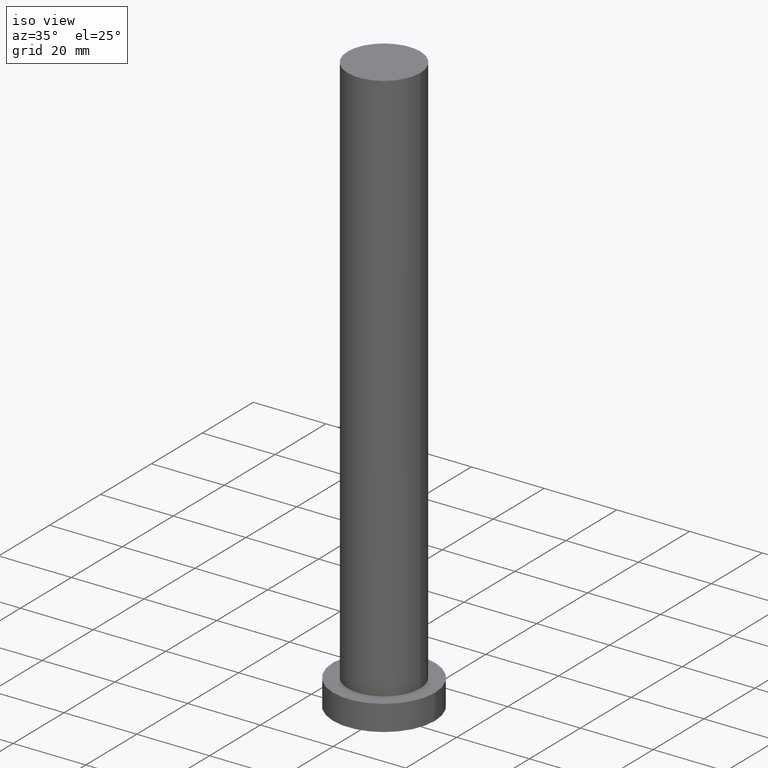
[diagram: clean part render]
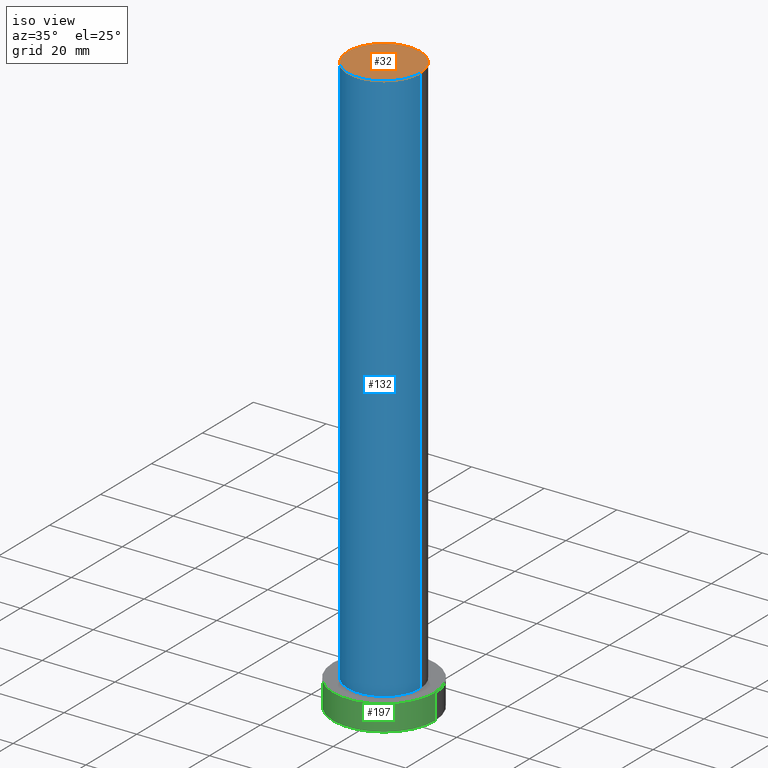
[diagram: same view with three faces highlighted in distinct colors, each labeled with its STEP entity id]
A machine part, iso view with three faces highlighted in distinct colors.
Their STEP definitions:

[orange] entity #32 — the highlighted planar face has unit normal (0, 0, 1).
#7 = CIRCLE ( 'NONE', #154, 10.00000000000000000 ) ;
#32 = ADVANCED_FACE ( 'NONE', ( #202 ), #90, .T. ) ;
#33 = CARTESIAN_POINT ( 'NONE',  ( 0.000000000000000000, 0.000000000000000000, 160.0000000000000000 ) ) ;
#38 = CARTESIAN_POINT ( 'NONE',  ( 0.000000000000000000, 0.000000000000000000, 160.0000000000000000 ) ) ;
#61 = VERTEX_POINT ( 'NONE', #187 ) ;
#72 = CIRCLE ( 'NONE', #215, 10.00000000000000000 ) ;
#84 = CARTESIAN_POINT ( 'NONE',  ( -10.00000000000000000, 0.000000000000000000, 160.0000000000000000 ) ) ;
#90 = PLANE ( 'NONE',  #113 ) ;
#110 = DIRECTION ( 'NONE',  ( 1.000000000000000000, 0.000000000000000000, -0.000000000000000000 ) ) ;
#113 = AXIS2_PLACEMENT_3D ( 'NONE', #242, #186, #110 ) ;
#114 = ORIENTED_EDGE ( 'NONE', *, *, #210, .T. ) ;
#137 = DIRECTION ( 'NONE',  ( 1.000000000000000000, 0.000000000000000000, 0.000000000000000000 ) ) ;
#144 = DIRECTION ( 'NONE',  ( 1.000000000000000000, 0.000000000000000000, 0.000000000000000000 ) ) ;
#147 = EDGE_CURVE ( 'NONE', #173, #61, #7, .T. ) ;
#154 = AXIS2_PLACEMENT_3D ( 'NONE', #33, #162, #144 ) ;
#160 = ORIENTED_EDGE ( 'NONE', *, *, #147, .T. ) ;
#162 = DIRECTION ( 'NONE',  ( 0.000000000000000000, 0.000000000000000000, 1.000000000000000000 ) ) ;
#173 = VERTEX_POINT ( 'NONE', #84 ) ;
#186 = DIRECTION ( 'NONE',  ( 0.000000000000000000, 0.000000000000000000, 1.000000000000000000 ) ) ;
#187 = CARTESIAN_POINT ( 'NONE',  ( 10.00000000000000000, 1.224646799147353256E-15, 160.0000000000000000 ) ) ;
#192 = DIRECTION ( 'NONE',  ( 0.000000000000000000, 0.000000000000000000, 1.000000000000000000 ) ) ;
#202 = FACE_OUTER_BOUND ( 'NONE', #227, .T. ) ;
#210 = EDGE_CURVE ( 'NONE', #61, #173, #72, .T. ) ;
#215 = AXIS2_PLACEMENT_3D ( 'NONE', #38, #192, #137 ) ;
#227 = EDGE_LOOP ( 'NONE', ( #160, #114 ) ) ;
#242 = CARTESIAN_POINT ( 'NONE',  ( 0.000000000000000000, 0.000000000000000000, 160.0000000000000000 ) ) ;

[blue] entity #132 — the highlighted cylindrical surface (partial cylindrical patch) has radius 10 mm, axis along (-0, -0, -1).
#4 = DIRECTION ( 'NONE',  ( -1.000000000000000000, 0.000000000000000000, 0.000000000000000000 ) ) ;
#7 = CIRCLE ( 'NONE', #154, 10.00000000000000000 ) ;
#30 = VECTOR ( 'NONE', #249, 1000.000000000000000 ) ;
#33 = CARTESIAN_POINT ( 'NONE',  ( 0.000000000000000000, 0.000000000000000000, 160.0000000000000000 ) ) ;
#46 = LINE ( 'NONE', #121, #57 ) ;
#52 = DIRECTION ( 'NONE',  ( -0.000000000000000000, -0.000000000000000000, -1.000000000000000000 ) ) ;
#57 = VECTOR ( 'NONE', #107, 1000.000000000000000 ) ;
#61 = VERTEX_POINT ( 'NONE', #187 ) ;
#62 = ORIENTED_EDGE ( 'NONE', *, *, #147, .F. ) ;
#67 = FACE_OUTER_BOUND ( 'NONE', #142, .T. ) ;
#78 = CARTESIAN_POINT ( 'NONE',  ( -10.00000000000000000, 0.000000000000000000, 7.000000000000000000 ) ) ;
#84 = CARTESIAN_POINT ( 'NONE',  ( -10.00000000000000000, 0.000000000000000000, 160.0000000000000000 ) ) ;
#85 = EDGE_CURVE ( 'NONE', #61, #180, #46, .T. ) ;
#86 = CYLINDRICAL_SURFACE ( 'NONE', #103, 10.00000000000000000 ) ;
#103 = AXIS2_PLACEMENT_3D ( 'NONE', #108, #52, #4 ) ;
#106 = CIRCLE ( 'NONE', #203, 10.00000000000000000 ) ;
#107 = DIRECTION ( 'NONE',  ( -0.000000000000000000, -0.000000000000000000, -1.000000000000000000 ) ) ;
#108 = CARTESIAN_POINT ( 'NONE',  ( 0.000000000000000000, 0.000000000000000000, 160.0000000000000000 ) ) ;
#121 = CARTESIAN_POINT ( 'NONE',  ( 10.00000000000000000, 1.224646799147353256E-15, 160.0000000000000000 ) ) ;
#129 = CARTESIAN_POINT ( 'NONE',  ( -10.00000000000000000, 0.000000000000000000, 160.0000000000000000 ) ) ;
#132 = ADVANCED_FACE ( 'NONE', ( #67 ), #86, .T. ) ;
#140 = ORIENTED_EDGE ( 'NONE', *, *, #233, .T. ) ;
#142 = EDGE_LOOP ( 'NONE', ( #177, #62, #140, #178 ) ) ;
#144 = DIRECTION ( 'NONE',  ( 1.000000000000000000, 0.000000000000000000, 0.000000000000000000 ) ) ;
#147 = EDGE_CURVE ( 'NONE', #173, #61, #7, .T. ) ;
#154 = AXIS2_PLACEMENT_3D ( 'NONE', #33, #162, #144 ) ;
#162 = DIRECTION ( 'NONE',  ( 0.000000000000000000, 0.000000000000000000, 1.000000000000000000 ) ) ;
#164 = CARTESIAN_POINT ( 'NONE',  ( 10.00000000000000000, 1.224646799147353256E-15, 7.000000000000000000 ) ) ;
#173 = VERTEX_POINT ( 'NONE', #84 ) ;
#177 = ORIENTED_EDGE ( 'NONE', *, *, #85, .F. ) ;
#178 = ORIENTED_EDGE ( 'NONE', *, *, #225, .T. ) ;
#180 = VERTEX_POINT ( 'NONE', #164 ) ;
#187 = CARTESIAN_POINT ( 'NONE',  ( 10.00000000000000000, 1.224646799147353256E-15, 160.0000000000000000 ) ) ;
#203 = AXIS2_PLACEMENT_3D ( 'NONE', #226, #222, #246 ) ;
#212 = VERTEX_POINT ( 'NONE', #78 ) ;
#222 = DIRECTION ( 'NONE',  ( 0.000000000000000000, 0.000000000000000000, 1.000000000000000000 ) ) ;
#225 = EDGE_CURVE ( 'NONE', #212, #180, #106, .T. ) ;
#226 = CARTESIAN_POINT ( 'NONE',  ( 0.000000000000000000, 0.000000000000000000, 7.000000000000000000 ) ) ;
#229 = LINE ( 'NONE', #129, #30 ) ;
#233 = EDGE_CURVE ( 'NONE', #173, #212, #229, .T. ) ;
#246 = DIRECTION ( 'NONE',  ( 1.000000000000000000, 0.000000000000000000, 0.000000000000000000 ) ) ;
#249 = DIRECTION ( 'NONE',  ( -0.000000000000000000, -0.000000000000000000, -1.000000000000000000 ) ) ;

[green] entity #197 — the highlighted cylindrical surface (partial cylindrical patch) has radius 14 mm, axis along (-0, -0, -1).
#1 = EDGE_CURVE ( 'NONE', #99, #119, #3, .T. ) ;
#3 = CIRCLE ( 'NONE', #13, 14.00000000000000000 ) ;
#5 = DIRECTION ( 'NONE',  ( 1.000000000000000000, 0.000000000000000000, 0.000000000000000000 ) ) ;
#8 = EDGE_CURVE ( 'NONE', #119, #207, #219, .T. ) ;
#12 = DIRECTION ( 'NONE',  ( 0.000000000000000000, 0.000000000000000000, 1.000000000000000000 ) ) ;
#13 = AXIS2_PLACEMENT_3D ( 'NONE', #234, #127, #5 ) ;
#14 = CARTESIAN_POINT ( 'NONE',  ( 14.00000000000000000, 1.714505518806294638E-15, 0.000000000000000000 ) ) ;
#20 = ORIENTED_EDGE ( 'NONE', *, *, #69, .T. ) ;
#35 = DIRECTION ( 'NONE',  ( -0.000000000000000000, -0.000000000000000000, -1.000000000000000000 ) ) ;
#45 = ORIENTED_EDGE ( 'NONE', *, *, #8, .F. ) ;
#48 = CARTESIAN_POINT ( 'NONE',  ( -14.00000000000000000, 0.000000000000000000, 7.000000000000000000 ) ) ;
#53 = CYLINDRICAL_SURFACE ( 'NONE', #63, 14.00000000000000000 ) ;
#63 = AXIS2_PLACEMENT_3D ( 'NONE', #111, #152, #155 ) ;
#69 = EDGE_CURVE ( 'NONE', #99, #101, #87, .T. ) ;
#75 = AXIS2_PLACEMENT_3D ( 'NONE', #244, #12, #209 ) ;
#87 = LINE ( 'NONE', #48, #193 ) ;
#89 = CIRCLE ( 'NONE', #75, 14.00000000000000000 ) ;
#91 = VECTOR ( 'NONE', #35, 1000.000000000000000 ) ;
#99 = VERTEX_POINT ( 'NONE', #109 ) ;
#101 = VERTEX_POINT ( 'NONE', #126 ) ;
#109 = CARTESIAN_POINT ( 'NONE',  ( -14.00000000000000000, 0.000000000000000000, 7.000000000000000000 ) ) ;
#111 = CARTESIAN_POINT ( 'NONE',  ( 0.000000000000000000, 0.000000000000000000, 7.000000000000000000 ) ) ;
#119 = VERTEX_POINT ( 'NONE', #220 ) ;
#124 = DIRECTION ( 'NONE',  ( -0.000000000000000000, -0.000000000000000000, -1.000000000000000000 ) ) ;
#126 = CARTESIAN_POINT ( 'NONE',  ( -14.00000000000000000, 0.000000000000000000, 0.000000000000000000 ) ) ;
#127 = DIRECTION ( 'NONE',  ( 0.000000000000000000, 0.000000000000000000, 1.000000000000000000 ) ) ;
#152 = DIRECTION ( 'NONE',  ( -0.000000000000000000, -0.000000000000000000, -1.000000000000000000 ) ) ;
#155 = DIRECTION ( 'NONE',  ( -1.000000000000000000, 0.000000000000000000, 0.000000000000000000 ) ) ;
#193 = VECTOR ( 'NONE', #124, 1000.000000000000000 ) ;
#194 = EDGE_CURVE ( 'NONE', #101, #207, #89, .T. ) ;
#197 = ADVANCED_FACE ( 'NONE', ( #224 ), #53, .T. ) ;
#205 = CARTESIAN_POINT ( 'NONE',  ( 14.00000000000000000, 1.714505518806294638E-15, 7.000000000000000000 ) ) ;
#206 = ORIENTED_EDGE ( 'NONE', *, *, #194, .T. ) ;
#207 = VERTEX_POINT ( 'NONE', #14 ) ;
#209 = DIRECTION ( 'NONE',  ( 1.000000000000000000, 0.000000000000000000, 0.000000000000000000 ) ) ;
#219 = LINE ( 'NONE', #205, #91 ) ;
#220 = CARTESIAN_POINT ( 'NONE',  ( 14.00000000000000000, 1.714505518806294638E-15, 7.000000000000000000 ) ) ;
#224 = FACE_OUTER_BOUND ( 'NONE', #253, .T. ) ;
#234 = CARTESIAN_POINT ( 'NONE',  ( 0.000000000000000000, 0.000000000000000000, 7.000000000000000000 ) ) ;
#244 = CARTESIAN_POINT ( 'NONE',  ( 0.000000000000000000, 0.000000000000000000, 0.000000000000000000 ) ) ;
#253 = EDGE_LOOP ( 'NONE', ( #45, #255, #20, #206 ) ) ;
#255 = ORIENTED_EDGE ( 'NONE', *, *, #1, .F. ) ;